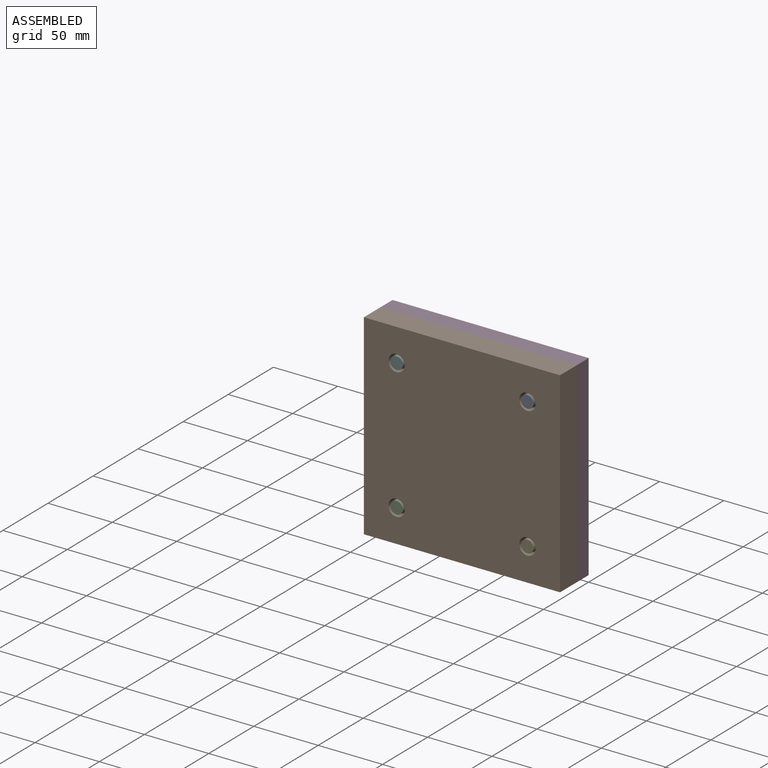
[diagram: assembled view]
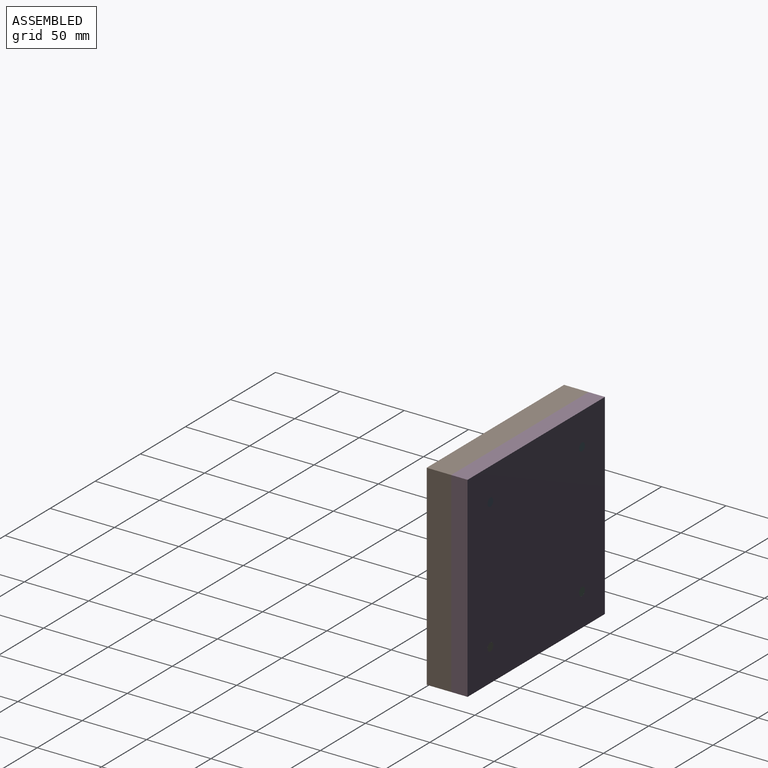
[diagram: assembled view, second angle]
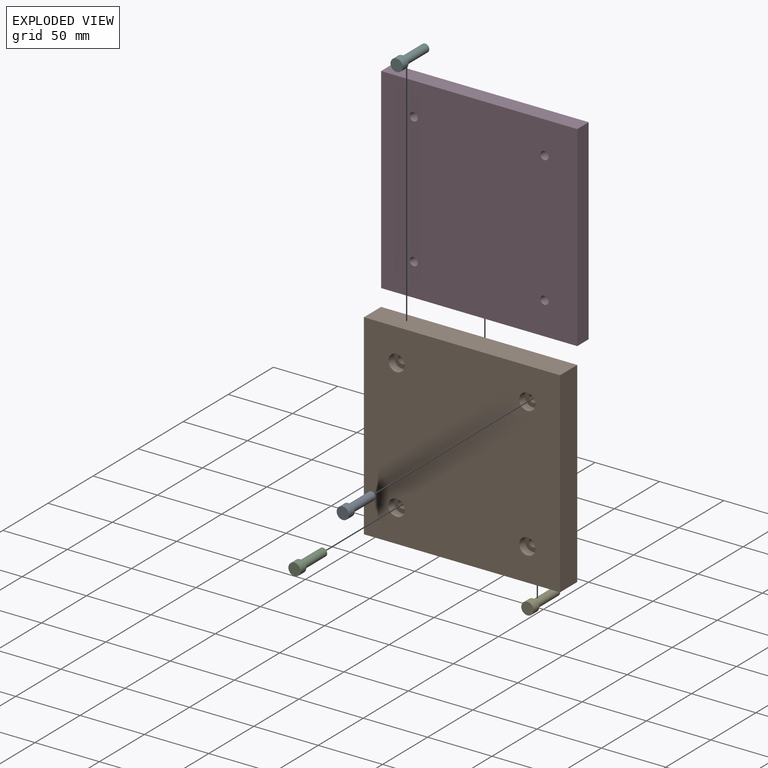
[diagram: exploded view]
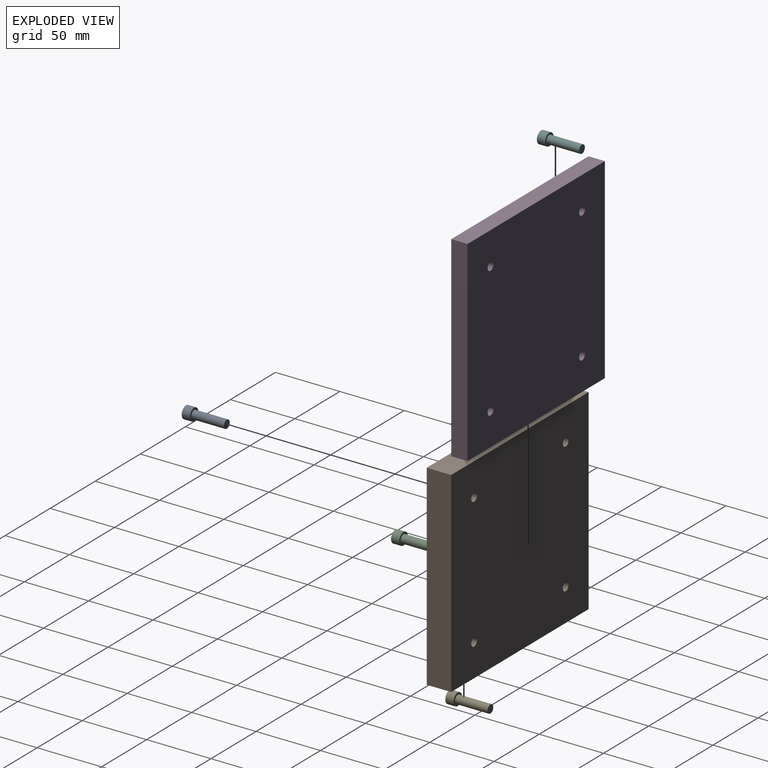
[diagram: exploded view, second angle]
ASSEMBLY  parts=6 mates=5
PART A: 5 faces, bbox 9.5x31.8x9.5 mm
  f0: cylinder r=4.76mm len=9.53mm, axis (0,1,0), area 190mm2, adj f1,f2
  f1: plane 9.53x9.53mm, normal (0,-1,0), area 71.3mm2, adj f0
  f2: plane 9.53x9.53mm, normal (0,1,0), area 39.6mm2, adj f0,f3
  f3: cylinder r=3.17mm len=25.4mm, axis (0,-1,0), area 506.7mm2, adj f2,f4
  f4: plane 6.35x6.35mm, normal (0,1,0), area 31.7mm2, adj f3
PART B: 18 faces, bbox 152.4x19.1x152.4 mm
  f0: plane 152.4x19.05mm, normal (0,0,-1), area 2903.2mm2, adj f1,f3,f4,f5
  f1: plane 152.4x19.05mm, normal (1,0,0), area 2903.2mm2, adj f0,f2,f4,f5
  f2: plane 152.4x19.05mm, normal (0,0,1), area 2903.2mm2, adj f1,f3,f4,f5
  f3: plane 152.4x19.05mm, normal (-1,0,0), area 2903.2mm2, adj f0,f2,f4,f5
  f4: plane 152.4x152.4mm, normal (0,-1,0), area 22719.1mm2, adj f0,f1,f2,f3,f8,f11,f14,f17
  f5: plane 152.4x152.4mm, normal (0,1,0), area 23099.1mm2, adj f0,f1,f2,f3,f6,f9,f12,f15
  f6: cylinder r=3.17mm len=12.7mm, axis (0,-1,0), area 253.4mm2, adj f5,f7
  f7: plane 12.7x12.7mm, normal (0,-1,0), area 95mm2, adj f6,f8
  f8: cylinder r=6.35mm len=12.7mm, axis (0,-1,0), area 253.4mm2, adj f4,f7
  f9: cylinder r=3.17mm len=12.7mm, axis (0,-1,0), area 253.4mm2, adj f5,f10
  f10: plane 12.7x12.7mm, normal (0,-1,0), area 95mm2, adj f9,f11
  f11: cylinder r=6.35mm len=12.7mm, axis (0,-1,0), area 253.4mm2, adj f4,f10
  f12: cylinder r=3.17mm len=12.7mm, axis (0,-1,0), area 253.4mm2, adj f5,f13
  f13: plane 12.7x12.7mm, normal (0,-1,0), area 95mm2, adj f12,f14
  f14: cylinder r=6.35mm len=12.7mm, axis (0,-1,0), area 253.4mm2, adj f4,f13
  f15: cylinder r=3.17mm len=12.7mm, axis (0,-1,0), area 253.4mm2, adj f5,f16
  f16: plane 12.7x12.7mm, normal (0,-1,0), area 95mm2, adj f15,f17
  f17: cylinder r=6.35mm len=12.7mm, axis (0,-1,0), area 253.4mm2, adj f4,f16
PART C: same geometry as A
PART D: 10 faces, bbox 152.4x12.7x152.4 mm
  f0: plane 152.4x12.7mm, normal (0,0,-1), area 1935.5mm2, adj f1,f3,f4,f5
  f1: plane 152.4x12.7mm, normal (1,0,0), area 1935.5mm2, adj f0,f2,f4,f5
  f2: plane 152.4x12.7mm, normal (0,0,1), area 1935.5mm2, adj f1,f3,f4,f5
  f3: plane 152.4x12.7mm, normal (-1,0,0), area 1935.5mm2, adj f0,f2,f4,f5
  f4: plane 152.4x152.4mm, normal (0,-1,0), area 23099.1mm2, adj f0,f1,f2,f3,f6,f7,f8,f9
  f5: plane 152.4x152.4mm, normal (0,1,0), area 23099.1mm2, adj f0,f1,f2,f3,f6,f7,f8,f9
  f6: cylinder r=3.17mm len=12.7mm, axis (0,-1,0), area 253.4mm2, adj f4,f5
  f7: cylinder r=3.17mm len=12.7mm, axis (0,-1,0), area 253.4mm2, adj f4,f5
  f8: cylinder r=3.17mm len=12.7mm, axis (0,-1,0), area 253.4mm2, adj f4,f5
  f9: cylinder r=3.17mm len=12.7mm, axis (0,-1,0), area 253.4mm2, adj f4,f5
PART E: same geometry as A
PART F: same geometry as A
PLACE A t=(50.8,-15.88,50.8)mm
PLACE B t=(0,-9.53,0)mm
PLACE C t=(-50.8,-15.88,-50.8)mm
PLACE D t=(0,6.35,0)mm
PLACE E t=(50.8,-15.88,-50.8)mm
PLACE F t=(-50.8,-15.88,50.8)mm
MATE fastened D.f4 <-> B.f5  axis (0,-1,0) through (0,0,0)mm
MATE parallel A.f0 <-> D.f7  axis (0,1,0) through (50.8,12.7,50.8)mm
MATE parallel C.f0 <-> D.f9  axis (0,1,0) through (-50.8,12.7,-50.8)mm
MATE parallel E.f0 <-> D.f8  axis (0,1,0) through (50.8,12.7,-50.8)mm
MATE parallel F.f0 <-> D.f6  axis (0,1,0) through (-50.8,12.7,50.8)mm
